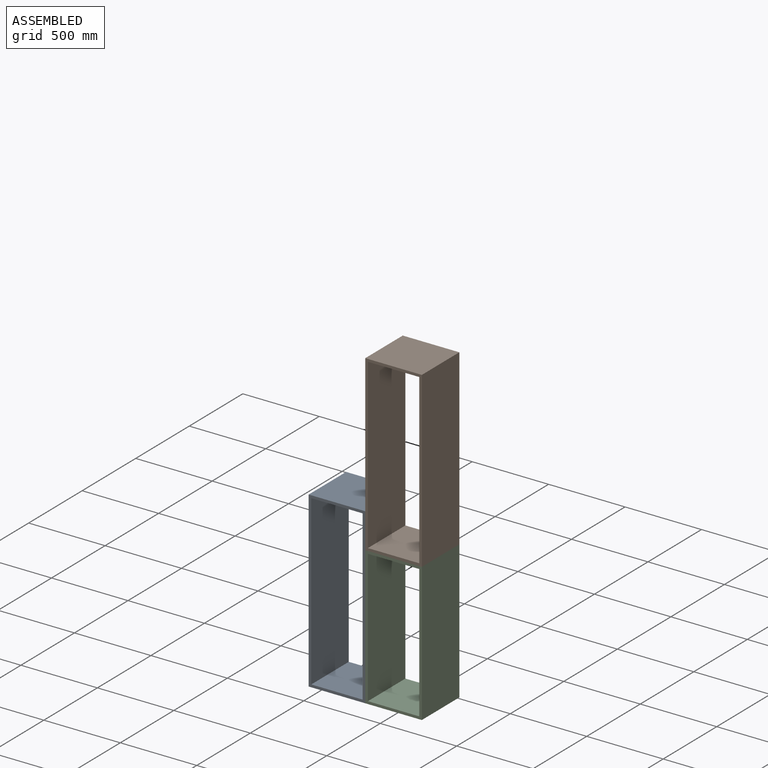
[diagram: assembled view]
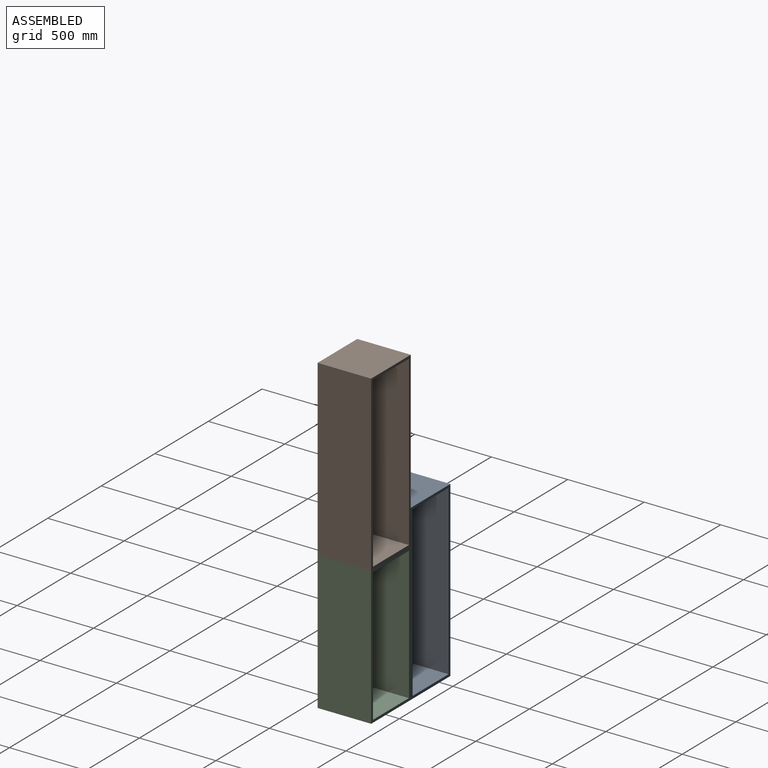
[diagram: assembled view, second angle]
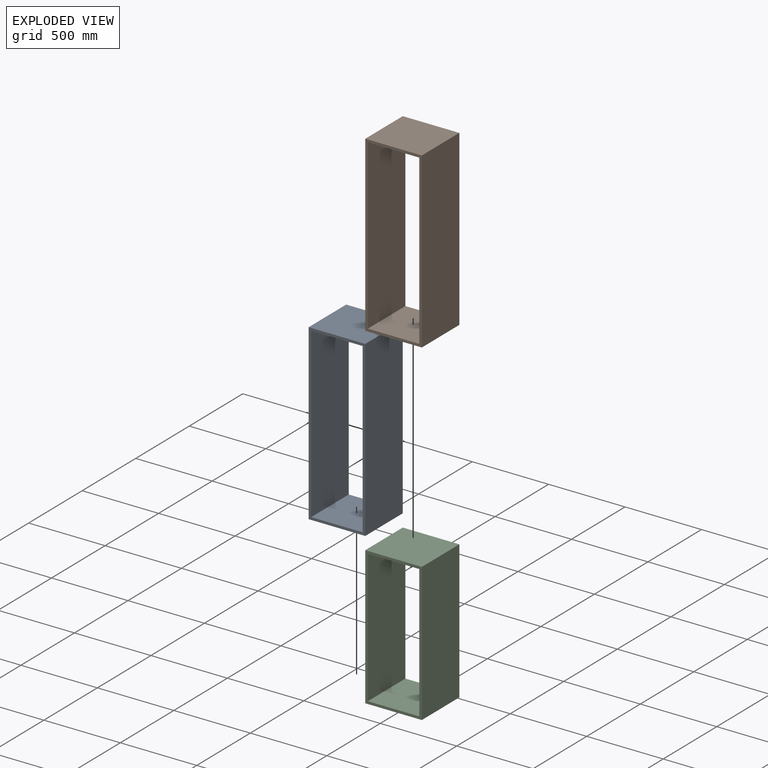
[diagram: exploded view]
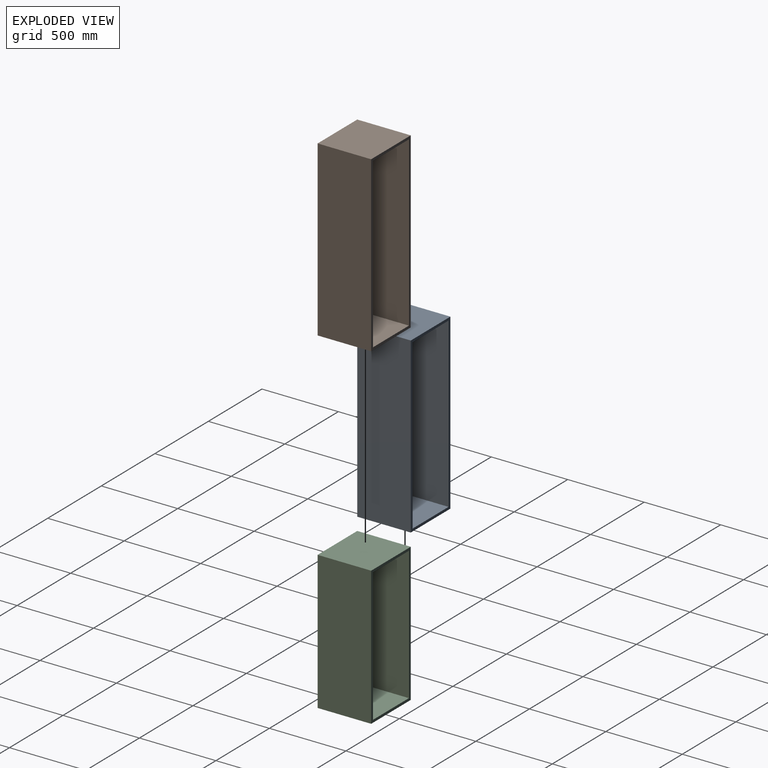
[diagram: exploded view, second angle]
ASSEMBLY  parts=3 mates=2
PART A: 18 faces, bbox 370x350x1135 mm
  f0: plane 1101x350mm, normal (-1,0,0), area 385350mm2, adj f1,f7,f8,f9
  f1: plane 350x336mm, normal (0,0,1), area 117600mm2, adj f0,f2,f8,f9
  f2: plane 1101x350mm, normal (1,0,0), area 385350mm2, adj f1,f7,f8,f9
  f3: plane 1135x350mm, normal (1,0,0), area 397250mm2, adj f4,f6,f8,f9
  f4: plane 370x350mm, normal (0,0,1), area 129500mm2, adj f3,f5,f8,f9
  f5: plane 1135x350mm, normal (-1,0,0), area 397250mm2, adj f4,f6,f8,f9
  f6: plane 370x350mm, normal (0,0,-1), area 129405mm2, adj f3,f5,f8,f9,f11,f13,f15,f17
  f7: plane 350x336mm, normal (0,0,-1), area 117600mm2, adj f0,f2,f8,f9
  f8: plane 1135x370mm, normal (0,-1,0), area 50014mm2, adj f0,f1,f2,f3,f4,f5,f6,f7
  f9: plane 1135x370mm, normal (0,1,0), area 50014mm2, adj f0,f1,f2,f3,f4,f5,f6,f7
  f10: cone r=0mm half-angle=59deg, axis (0,0,-1), area 27.7mm2, adj f11
  f11: cylinder r=2.75mm len=12mm, axis (0,0,-1), area 207.3mm2, adj f6,f10
  f12: cone r=0mm half-angle=59deg, axis (0,0,-1), area 27.7mm2, adj f13
  f13: cylinder r=2.75mm len=12mm, axis (0,0,-1), area 207.3mm2, adj f6,f12
  f14: cone r=0mm half-angle=59deg, axis (0,0,-1), area 27.7mm2, adj f15
  f15: cylinder r=2.75mm len=12mm, axis (0,0,-1), area 207.3mm2, adj f6,f14
  f16: cone r=0mm half-angle=59deg, axis (0,0,-1), area 27.7mm2, adj f17
  f17: cylinder r=2.75mm len=12mm, axis (0,0,-1), area 207.3mm2, adj f6,f16
PART B: same geometry as A
PART C: 18 faces, bbox 370x350x905 mm
  f0: plane 871x350mm, normal (-1,0,0), area 304850mm2, adj f1,f7,f8,f9
  f1: plane 350x336mm, normal (0,0,1), area 117600mm2, adj f0,f2,f8,f9
  f2: plane 871x350mm, normal (1,0,0), area 304850mm2, adj f1,f7,f8,f9
  f3: plane 905x350mm, normal (1,0,0), area 316750mm2, adj f4,f6,f8,f9
  f4: plane 370x350mm, normal (0,0,1), area 129500mm2, adj f3,f5,f8,f9
  f5: plane 905x350mm, normal (-1,0,0), area 316750mm2, adj f4,f6,f8,f9
  f6: plane 370x350mm, normal (0,0,-1), area 129405mm2, adj f3,f5,f8,f9,f11,f13,f15,f17
  f7: plane 350x336mm, normal (0,0,-1), area 117600mm2, adj f0,f2,f8,f9
  f8: plane 905x370mm, normal (0,-1,0), area 42194mm2, adj f0,f1,f2,f3,f4,f5,f6,f7
  f9: plane 905x370mm, normal (0,1,0), area 42194mm2, adj f0,f1,f2,f3,f4,f5,f6,f7
  f10: cone r=0mm half-angle=59deg, axis (0,0,-1), area 27.7mm2, adj f11
  f11: cylinder r=2.75mm len=12mm, axis (0,0,-1), area 207.3mm2, adj f6,f10
  f12: cone r=0mm half-angle=59deg, axis (0,0,-1), area 27.7mm2, adj f13
  f13: cylinder r=2.75mm len=12mm, axis (0,0,-1), area 207.3mm2, adj f6,f12
  f14: cone r=0mm half-angle=59deg, axis (0,0,-1), area 27.7mm2, adj f15
  f15: cylinder r=2.75mm len=12mm, axis (0,0,-1), area 207.3mm2, adj f6,f14
  f16: cone r=0mm half-angle=59deg, axis (0,0,-1), area 27.7mm2, adj f17
  f17: cylinder r=2.75mm len=12mm, axis (0,0,-1), area 207.3mm2, adj f6,f16
PLACE A t=(-356.29,-45.37,-22)mm
PLACE B t=(13.71,-45.37,883)mm
PLACE C t=(13.71,-45.37,-137)mm
MATE planar B.f6 <-> C.f4  axis (0,0,-1) through (-171.29,-395.37,315.5)mm
MATE planar C.f6 <-> A.f6  axis (0,0,-1) through (-171.29,-395.37,-589.5)mm
